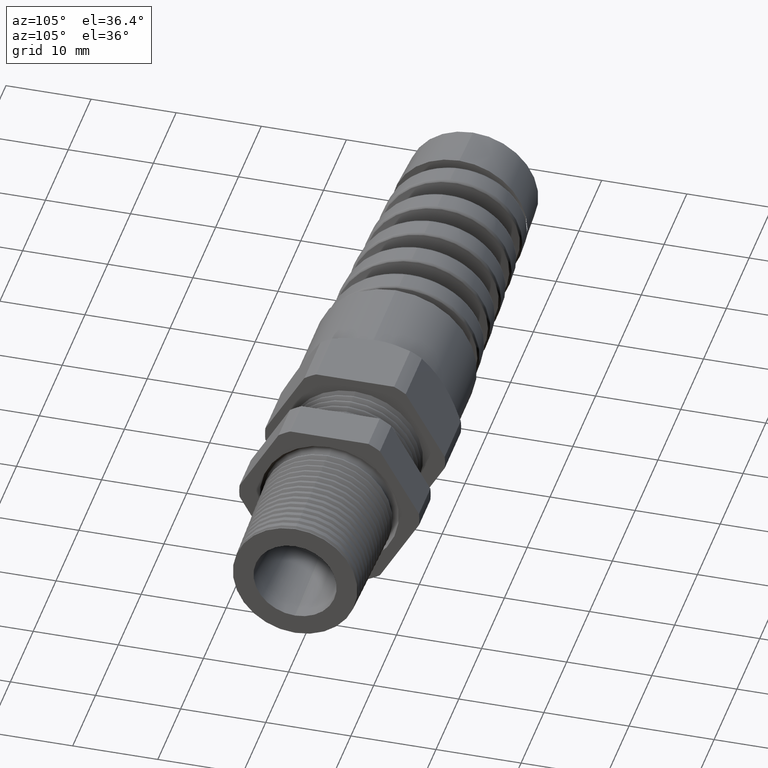
[diagram: clean part render]
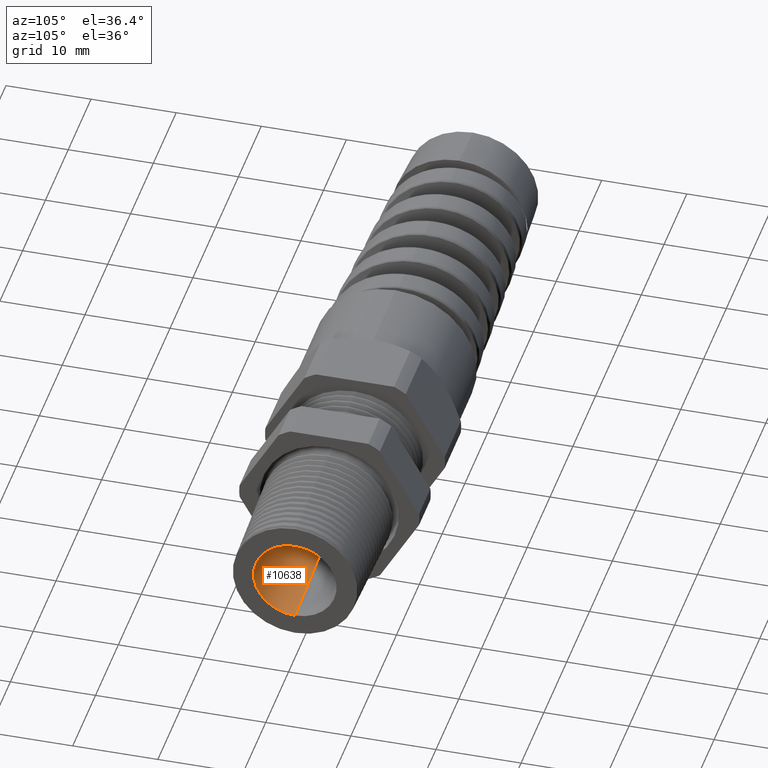
[diagram: same view with one face highlighted and labeled with its STEP entity id]
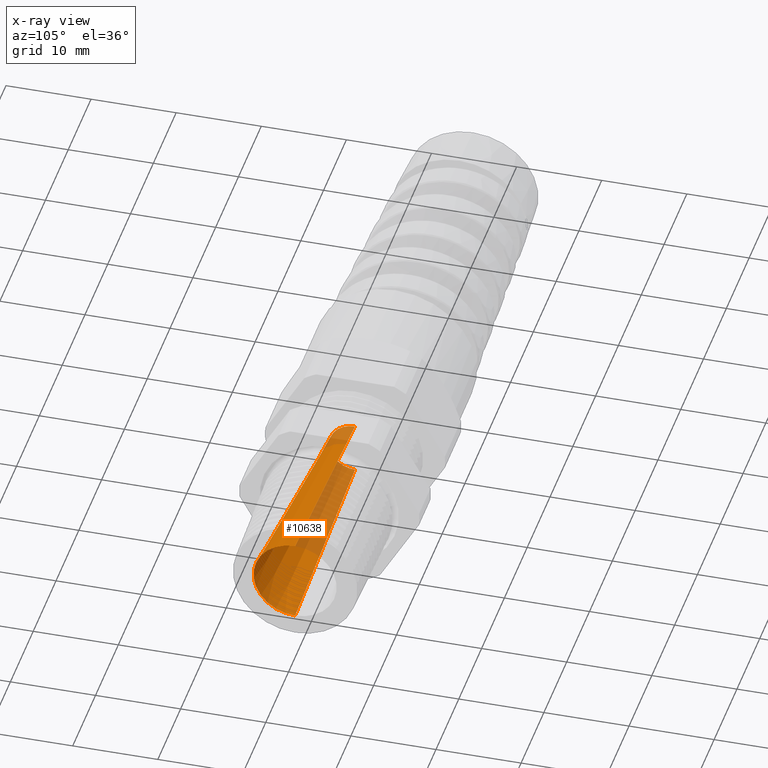
[diagram: x-ray of the same camera — body ghosted, the highlighted face saturated]
A machine part, auxiliary view. The second image highlights one B-rep face of the part: STEP entity #10638.
The next image is the same camera in x-ray: the body ghosted, the highlighted face saturated — about 31% of this face is hidden behind the body in this view.
In plain terms, the highlighted conical surface has half-angle 4 deg.
Its self-contained STEP definition (entity closure, byte-faithful):
#5172 = DIRECTION ( 'NONE',  ( 0.0000000000000000000, 0.0000000000000000000, -1.000000000000000000 ) ) ;
#5173 = DIRECTION ( 'NONE',  ( 1.000000000000000000, 0.0000000000000000000, 0.0000000000000000000 ) ) ;
#5174 = AXIS2_PLACEMENT_3D ( 'NONE', #5182, #5173, #5172 ) ;
#5176 = CONICAL_SURFACE ( 'NONE', #5174, 0.1200000000000000200, 0.06981317007976628500 ) ;
#5177 = FACE_OUTER_BOUND ( 'NONE', #11612, .T. ) ;
#5182 = CARTESIAN_POINT ( 'NONE',  ( -0.7548031496062992400, 0.0000000000000000000, 0.0000000000000000000 ) ) ;
#9662 = CARTESIAN_POINT ( 'NONE',  ( 0.2800000000000000300, 2.355736525329016900E-017, 0.1923604852410648000 ) ) ;
#9974 = CARTESIAN_POINT ( 'NONE',  ( -0.7548031496062992400, 0.0000000000000000000, -0.1200000000000000200 ) ) ;
#10169 = CARTESIAN_POINT ( 'NONE',  ( -0.7548031496062992400, 1.469576158976824000E-017, 0.1200000000000000200 ) ) ;
#10396 = DIRECTION ( 'NONE',  ( 0.9975640502598247500, 8.542704229054100400E-018, 0.06975647374411841900 ) ) ;
#10397 = VECTOR ( 'NONE', #10396, 39.37007874015748100 ) ;
#10398 = CARTESIAN_POINT ( 'NONE',  ( -0.7548031496062992400, 1.469576158976824000E-017, 0.1200000000000000200 ) ) ;
#10399 = LINE ( 'NONE', #10398, #10397 ) ;
#10405 = DIRECTION ( 'NONE',  ( 0.0000000000000000000, 0.0000000000000000000, -1.000000000000000000 ) ) ;
#10406 = DIRECTION ( 'NONE',  ( 1.000000000000000000, 0.0000000000000000000, 0.0000000000000000000 ) ) ;
#10407 = CARTESIAN_POINT ( 'NONE',  ( 0.2800000000000000300, 0.0000000000000000000, 0.0000000000000000000 ) ) ;
#10408 = AXIS2_PLACEMENT_3D ( 'NONE', #10407, #10406, #10405 ) ;
#10409 = CIRCLE ( 'NONE', #10408, 0.1923604852410648000 ) ;
#10410 = CARTESIAN_POINT ( 'NONE',  ( 0.2800000000000000300, 0.0000000000000000000, -0.1923604852410648000 ) ) ;
#10411 = DIRECTION ( 'NONE',  ( 0.9975640502598247500, 0.0000000000000000000, -0.06975647374411841900 ) ) ;
#10412 = VECTOR ( 'NONE', #10411, 39.37007874015748100 ) ;
#10413 = CARTESIAN_POINT ( 'NONE',  ( -0.7548031496062992400, 0.0000000000000000000, -0.1200000000000000200 ) ) ;
#10414 = LINE ( 'NONE', #10413, #10412 ) ;
#10448 = DIRECTION ( 'NONE',  ( 0.0000000000000000000, 0.0000000000000000000, -1.000000000000000000 ) ) ;
#10449 = DIRECTION ( 'NONE',  ( 1.000000000000000000, 0.0000000000000000000, 0.0000000000000000000 ) ) ;
#10450 = CARTESIAN_POINT ( 'NONE',  ( -0.7548031496062992400, 0.0000000000000000000, 0.0000000000000000000 ) ) ;
#10451 = AXIS2_PLACEMENT_3D ( 'NONE', #10450, #10449, #10448 ) ;
#10452 = CIRCLE ( 'NONE', #10451, 0.1200000000000000200 ) ;
#10638 = ADVANCED_FACE ( 'NONE', ( #5177 ), #5176, .F. ) ;
#10945 = ORIENTED_EDGE ( 'NONE', *, *, #11610, .T. ) ;
#10951 = VERTEX_POINT ( 'NONE', #9662 ) ;
#11115 = VERTEX_POINT ( 'NONE', #9974 ) ;
#11206 = VERTEX_POINT ( 'NONE', #10169 ) ;
#11606 = EDGE_CURVE ( 'NONE', #11115, #11608, #10414, .T. ) ;
#11607 = ORIENTED_EDGE ( 'NONE', *, *, #11606, .F. ) ;
#11608 = VERTEX_POINT ( 'NONE', #10410 ) ;
#11610 = EDGE_CURVE ( 'NONE', #10951, #11608, #10409, .T. ) ;
#11612 = EDGE_LOOP ( 'NONE', ( #11618, #11616, #10945, #11607 ) ) ;
#11615 = EDGE_CURVE ( 'NONE', #11206, #10951, #10399, .T. ) ;
#11616 = ORIENTED_EDGE ( 'NONE', *, *, #11615, .T. ) ;
#11618 = ORIENTED_EDGE ( 'NONE', *, *, #11620, .F. ) ;
#11620 = EDGE_CURVE ( 'NONE', #11206, #11115, #10452, .T. ) ;